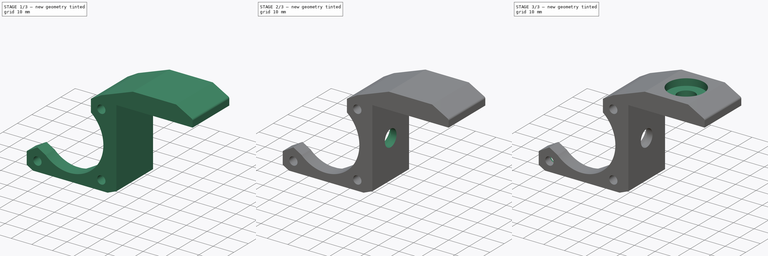
[diagram: build sequence overview — one tinted view per stage of 3, left to right]
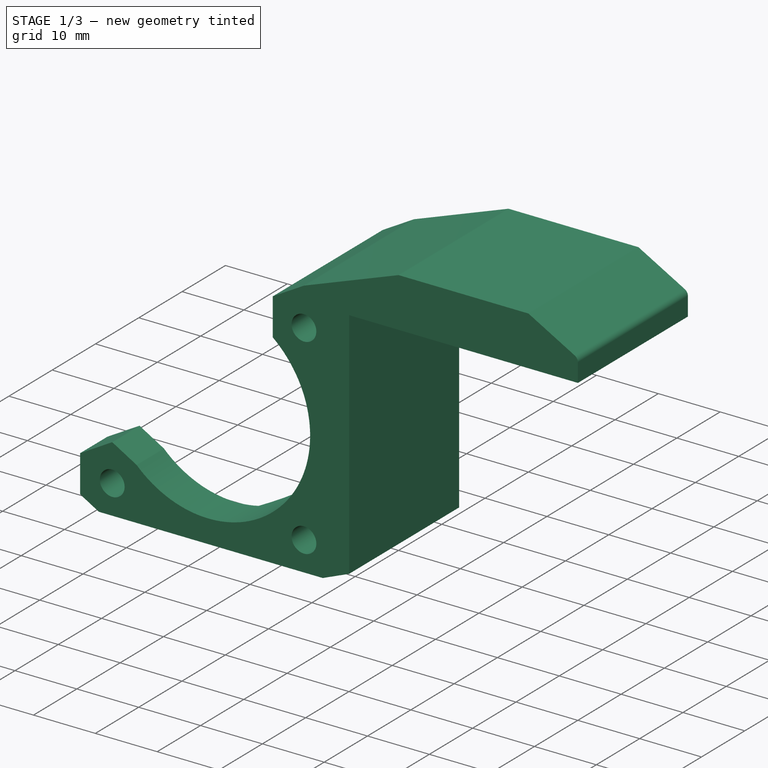
[diagram: stage 1 of 3 — iso view after this stage's code; geometry added in this stage tinted green]
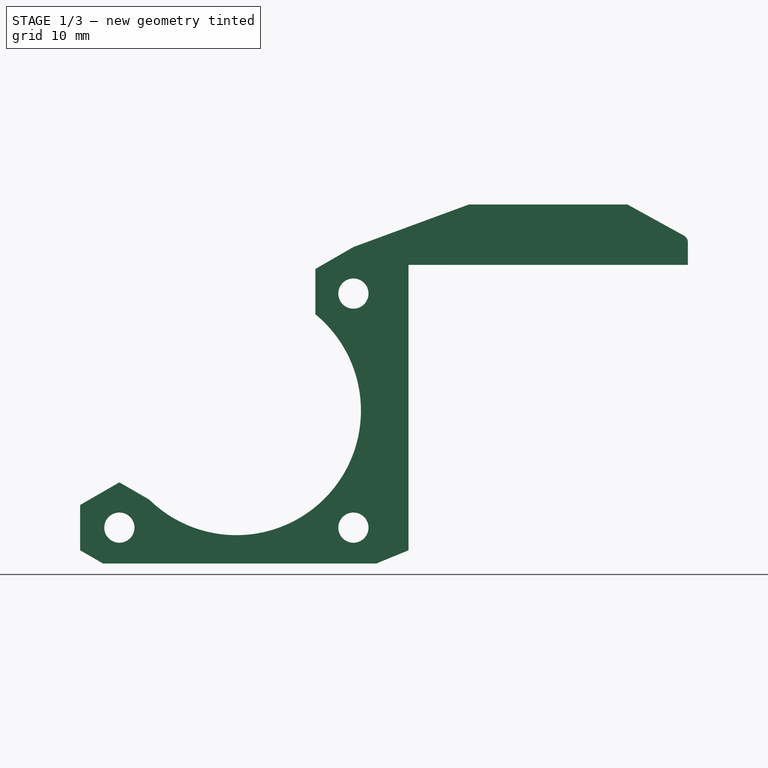
[diagram: stage 1 of 3 — front view after this stage's code; geometry added in this stage tinted green]
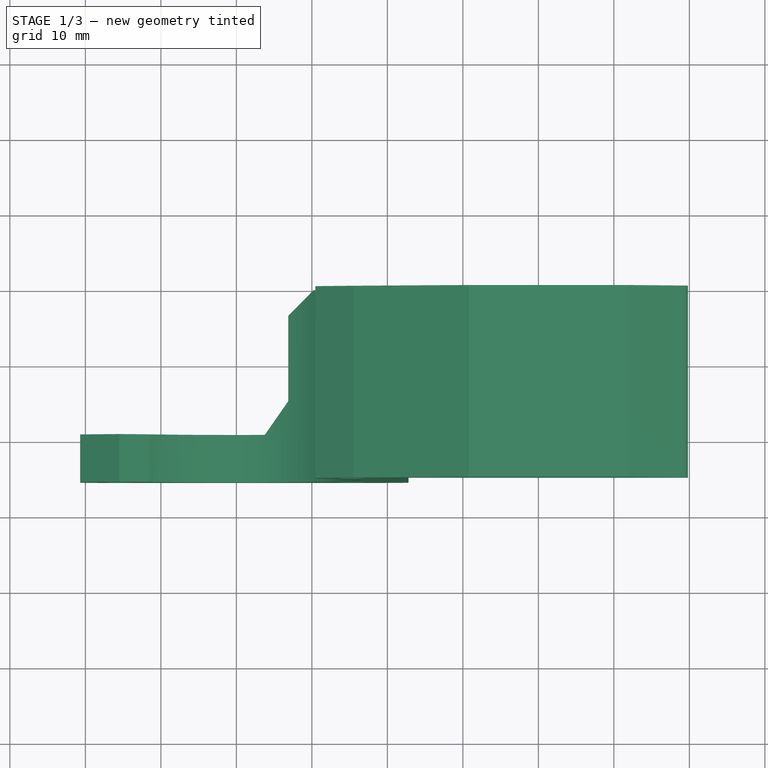
[diagram: stage 1 of 3 — top view after this stage's code; geometry added in this stage tinted green]
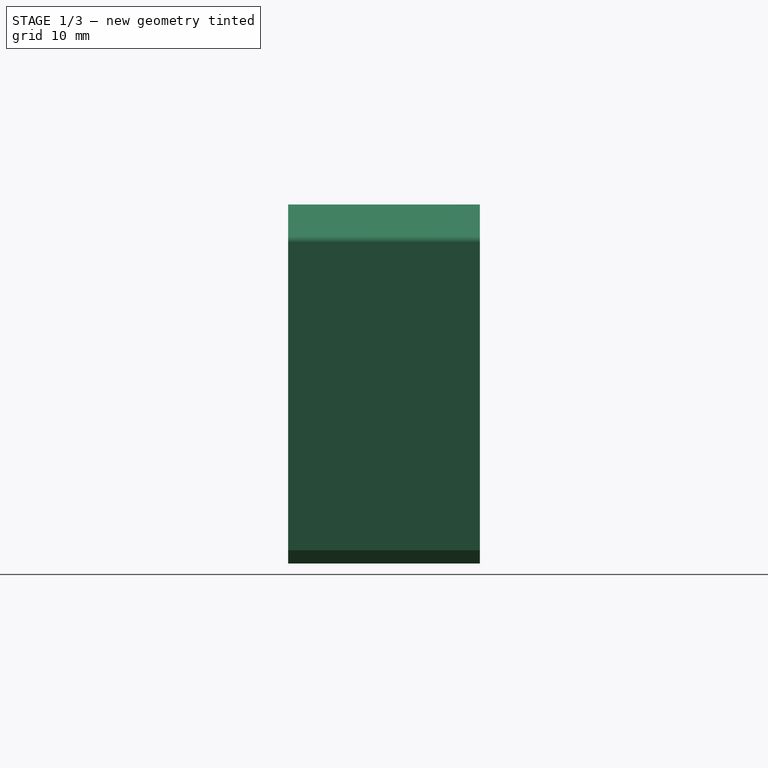
[diagram: stage 1 of 3 — right view after this stage's code; geometry added in this stage tinted green]
FCSTD DOCUMENT  (FreeCAD 0.18R)
Label: y-stepper-mount
License: All rights reserved
LicenseURL: http://en.wikipedia.org/wiki/All_rights_reserved
objects: Sketcher::SketchObject×8, PartDesign::Pocket×7, Part::Feature×2, PartDesign::Pad×1, PartDesign::Body×1
note: 27 computed .brp shape members not serialized (recipe doc carries the construction recipe); baked Part::Feature solids carry a one-line shape summary decoded from their .brp

FEATURE [Part::Feature] stepper_nema17
  Placement = pos=(0,-71.45,0) rot=(-1,0,0;1.5708rad)
  shape: bbox 41.86 x 69.5 x 40.63 mm, 80 faces (baked)
FEATURE [Sketcher::SketchObject] Sketch
  MapMode = 5
  Placement = pos=(0,0,0) rot=(1,0,0;1.5708rad)
  Support = -> [XZ_Plane]
  sketch-geometry (22):
    g0: Circle CenterX=-15.5 CenterY=-15.5 CenterZ=0 NormalX=0 NormalY=0 NormalZ=1 AngleXU=0 Radius=2
    g1: Circle CenterX=15.5 CenterY=-15.5 CenterZ=0 NormalX=0 NormalY=0 NormalZ=1 AngleXU=0 Radius=2
    g2: Circle CenterX=15.5 CenterY=15.5 CenterZ=0 NormalX=0 NormalY=0 NormalZ=1 AngleXU=0 Radius=2
    g3: ArcOfCircle CenterX=0 CenterY=0 CenterZ=0 NormalX=0 NormalY=0 NormalZ=1 AngleXU=0 Radius=16.5 StartAngle=3.9364 EndAngle=7.16717
    g4: LineSegment StartX=-15.5 StartY=-9.5 StartZ=0 EndX=-20.6962 EndY=-12.5 EndZ=0
    g5: LineSegment StartX=-20.6962 StartY=-12.5 StartZ=0 EndX=-20.6962 EndY=-18.5 EndZ=0
    g6: LineSegment StartX=-20.6962 StartY=-18.5 StartZ=0 EndX=-17.6651 EndY=-20.25 EndZ=0
    g7: LineSegment StartX=-15.5 StartY=-9.5 StartZ=0 EndX=-11.557 EndY=-11.7765 EndZ=0
    g8: LineSegment StartX=-13.3349 StartY=-20.25 StartZ=0 EndX=13.3349 EndY=-20.25 EndZ=0
    g9: LineSegment StartX=18.5417 StartY=-20.25 StartZ=0 EndX=22.8 EndY=-18.5 EndZ=0
    g10: LineSegment StartX=15.5 StartY=21.6675 StartZ=0 EndX=10.4622 EndY=18.759 EndZ=0
    g11: LineSegment StartX=10.4622 StartY=18.759 StartZ=0 EndX=10.4622 EndY=12.759 EndZ=0
    g12: LineSegment StartX=22.8 StartY=19.3 StartZ=0 EndX=22.8 EndY=-18.5 EndZ=0
    g13: LineSegment StartX=30.8 StartY=27.3 StartZ=0 EndX=51.8 EndY=27.3 EndZ=0
    g14: LineSegment StartX=59.8 StartY=22.3 StartZ=0 EndX=59.8 EndY=19.3 EndZ=0
    g15: LineSegment StartX=59.8 StartY=19.3 StartZ=0 EndX=22.8 EndY=19.3 EndZ=0
    g16: LineSegment StartX=15.5 StartY=21.6675 StartZ=0 EndX=30.8 EndY=27.3 EndZ=0
    g17: LineSegment StartX=51.8 StartY=27.3 StartZ=0 EndX=59.2827 EndY=23.1758 EndZ=0
    g18: ArcOfCircle CenterX=58.8 CenterY=22.3 CenterZ=0 NormalX=0 NormalY=0 NormalZ=1 AngleXU=0 Radius=1 StartAngle=1.4e-15 EndAngle=1.06706
    g19: LineSegment StartX=-13.3349 StartY=-20.25 StartZ=0 EndX=-17.6651 EndY=-20.25 EndZ=0
    g20: LineSegment StartX=13.3349 StartY=-20.25 StartZ=0 EndX=18.5417 EndY=-20.25 EndZ=0
    g21: LineSegment StartX=22.8 StartY=19.3 StartZ=0 EndX=22.8 EndY=24.3549 EndZ=0
  constraints (59):
    c: DistanceY(g0,g-1) = 15.5
    c: DistanceX(g0,g-1) = 15.5
    c: DistanceY(g0,g1) = 0
    c: DistanceX(g0,g1) = 31
    c: Equal(g1,g2)
    c: DistanceX(g2,g1) = 0
    c: DistanceY(g1,g2) = 31
    c: Coincident(g3,g-1)
    c: Diameter(g3) = 33
    c: Vertical(g5)
    c: Coincident(g5,g6)
    c: Coincident(g4,g5)
    c: Coincident(g4,g7)
    c: Angle(g5,g4) = 2.0944
    c: Angle(g6,g5) = 2.0944
    c: Angle(g4,g7) = 2.0944
    c: Diameter(g0) = 4
    c: DistanceY(g0,g4) = 6
    c: Distance(g4,g0) = 6
    c: Horizontal(g8)
    c: Coincident(g11,g10)
    c: Vertical(g11)
    c: Angle(g11,g10) = 2.0944
    c: Distance(g10,g2) = 6
    c: Coincident(g3,g7)
    c: Coincident(g3,g11)
    c: DistanceX(g4,g0) = 0
    c: Equal(g1,g0)
    c: Coincident(g12,g9)
    c: Vertical(g12)
    c: DistanceX(g2,g10) = 0
    c: DistanceY(g5,g9) = 0
    c: DistanceX(g3,g12) = 22.8
    c: Horizontal(g13)
    c: Vertical(g14)
    c: Coincident(g15,g14)
    c: DistanceX(g15,g15) = 37
    c: Coincident(g16,g10)
    c: Coincident(g16,g13)
    c: DistanceY(g3,g12) = 19.3
    c: DistanceX(g13,g14) = 8
    c: Coincident(g17,g13)
    c: Tangent(g17,g18) = 1.5708
    c: Tangent(g14,g18) = 1.5708
    c: DistanceX(g18,g14) = 1
    c: DistanceY(g14,g18) = 3
    c: DistanceX(g12,g13) = 8
    c: Coincident(g12,g15)
    c: Horizontal(g15)
    c: DistanceY(g11,g11) = 6
    c: Horizontal(g19)
    c: Coincident(g20,g8)
    c: Horizontal(g20)
    c: Coincident(g9,g20)
    c: Coincident(g6,g19)
    c: Coincident(g21,g12)
    c: PointOnObject(g21,g16)
    c: Vertical(g21)
    c: DistanceY(g12,g13) = 8
FEATURE [PartDesign::Pad] Pad
  Length = 25.4
  Length2 = 100
  Placement = pos=(0,0,0) rot=(1,0,0;1.5708rad)
  Profile = -> Sketch
  Type = 0
FEATURE [Sketcher::SketchObject] Sketch001
  MapMode = 5
  Placement = pos=(0,0,0) rot=(1,0,0;1.5708rad)
  Support = -> [XZ_Plane]
  sketch-geometry (2):
    g0: Circle CenterX=15.5 CenterY=-15.5 CenterZ=0 NormalX=0 NormalY=0 NormalZ=1 AngleXU=0 Radius=4
    g1: Circle CenterX=15.5 CenterY=15.5 CenterZ=0 NormalX=0 NormalY=0 NormalZ=1 AngleXU=0 Radius=4
  constraints (5):
    c: DistanceX(g1,g0) = 0
    c: DistanceY(g0,g1) = 31
    c: DistanceX(g-1,g1) = 15.5
    c: DistanceY(g-1,g1) = 15.5
    c: Diameter(g1) = 8
FEATURE [PartDesign::Pocket] Pocket
  BaseFeature = -> Pad
  Length = 17
  Length2 = 100
  Placement = pos=(0,0,0) rot=(1,0,0;1.5708rad)
  Profile = -> Sketch001
  Reversed = true
  Type = 0
FEATURE [Sketcher::SketchObject] Sketch002
  AttachmentOffset = pos=(0,0,23) rot=(0,0,1;0rad)
  MapMode = 5
  Placement = pos=(23,-5.1e-15,5.1e-15) rot=(0.57735,0.57735,0.57735;2.0944rad)
  Support = -> [YZ_Plane]
  sketch-geometry (1):
    g0: Circle CenterX=-12.7 CenterY=0 CenterZ=0 NormalX=0 NormalY=0 NormalZ=1 AngleXU=0 Radius=4.05
  constraints (3):
    c: DistanceY(g-1,g0) = 0
    c: DistanceX(g-1,g0) = -12.7
    c: Diameter(g0) = 8.1
FEATURE [Sketcher::SketchObject] Sketch003
  AttachmentOffset = pos=(0,0,40) rot=(0,0,1;0rad)
  MapMode = 5
  Placement = pos=(0,0,40) rot=(0,0,1;0rad)
  Support = -> [XY_Plane]
  sketch-geometry (6):
    g0: LineSegment StartX=6.87618 StartY=-3.32382 StartZ=0 EndX=6.87618 EndY=-14.6442 EndZ=0
    g1: LineSegment StartX=-20.8 StartY=-19.1 StartZ=0 EndX=3.75617 EndY=-19.1 EndZ=0
    g2: LineSegment StartX=6.87618 StartY=-14.6442 StartZ=0 EndX=3.75617 EndY=-19.1 EndZ=0
    g3: LineSegment StartX=6.87618 StartY=-3.32382 StartZ=0 EndX=10.2 EndY=0 EndZ=0
    g4: LineSegment StartX=10.2 StartY=0 StartZ=0 EndX=-20.8 EndY=0 EndZ=0
    g5: LineSegment StartX=-20.8 StartY=0 StartZ=0 EndX=-20.8 EndY=-19.1 EndZ=0
  constraints (16):
    c: Horizontal(g1)
    c: Coincident(g2,g1)
    c: Vertical(g0)
    c: Coincident(g2,g0)
    c: Coincident(g3,g0)
    c: PointOnObject(g3,g-1)
    c: Coincident(g4,g3)
    c: PointOnObject(g4,g-1)
    c: Coincident(g5,g4)
    c: Vertical(g5)
    c: DistanceX(g4,g4) = 31
    c: DistanceY(g1,g-1) = 19.1
    c: DistanceX(g4,g-1) = 20.8
    c: Angle(g2,g1) = 2.18166
    c: Coincident(g5,g1)
    c: Angle(g0,g3) = 2.35619
FEATURE [PartDesign::Pocket] Pocket001
  BaseFeature = -> Pocket
  Length = 200
  Length2 = 0
  Placement = pos=(0,0,0) rot=(1,0,0;1.5708rad)
  Profile = -> Sketch003
  Type = 0
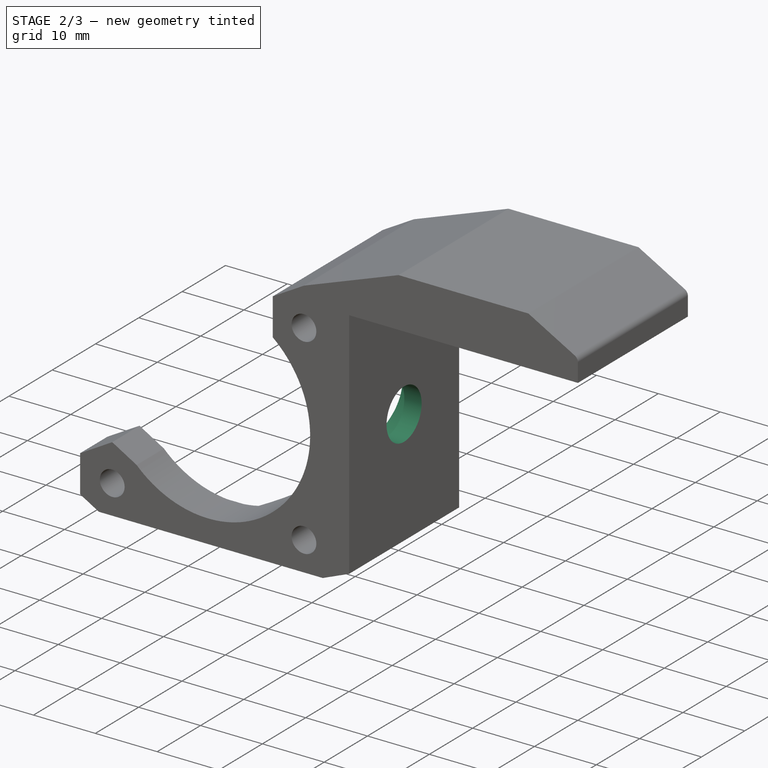
[diagram: stage 2 of 3 — iso view after this stage's code; geometry added in this stage tinted green]
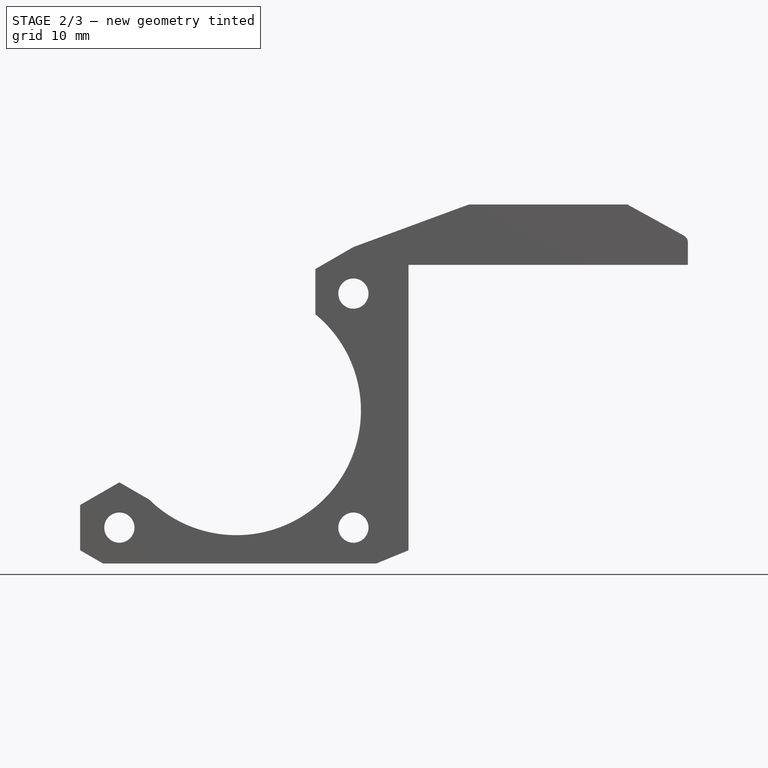
[diagram: stage 2 of 3 — front view after this stage's code; geometry added in this stage tinted green]
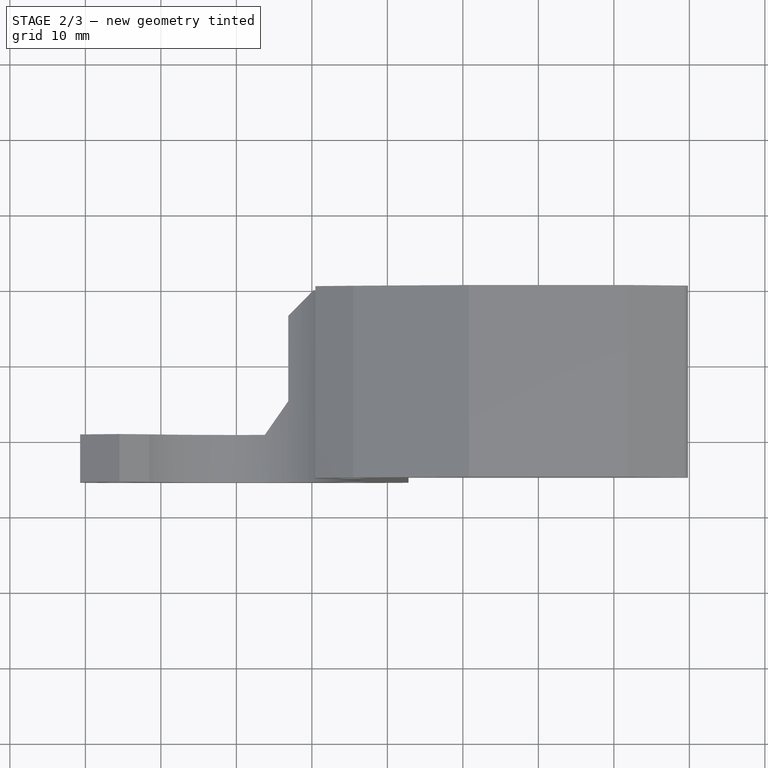
[diagram: stage 2 of 3 — top view after this stage's code; geometry added in this stage tinted green]
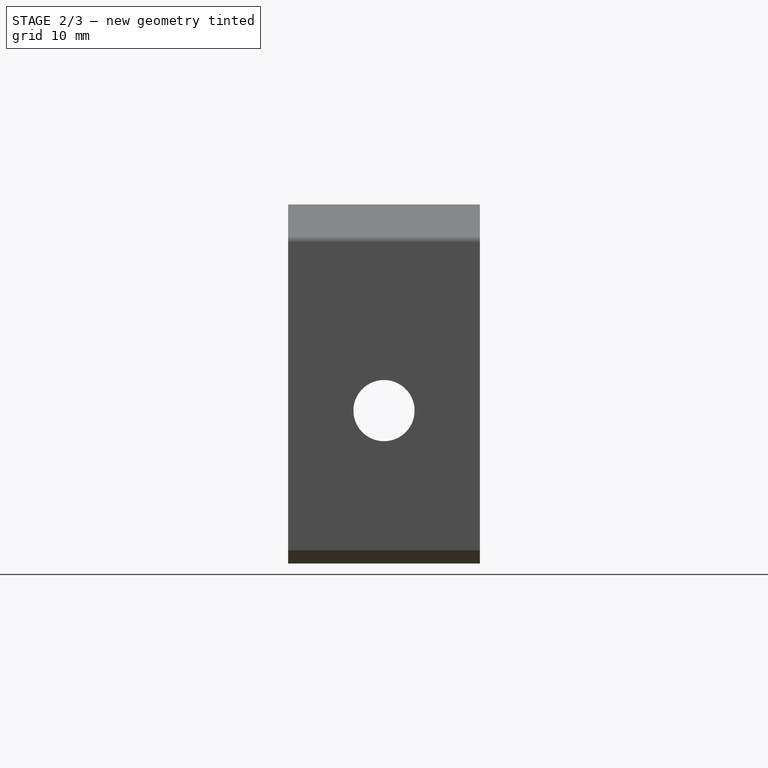
[diagram: stage 2 of 3 — right view after this stage's code; geometry added in this stage tinted green]
FEATURE [PartDesign::Pocket] Pocket002
  BaseFeature = -> Pocket001
  Length = 5
  Length2 = 100
  Placement = pos=(0,0,0) rot=(1,0,0;1.5708rad)
  Profile = -> Sketch002
  Type = 1
FEATURE [Sketcher::SketchObject] Sketch004
  AttachmentOffset = pos=(0,0,20) rot=(0,0,1;0rad)
  MapMode = 5
  Placement = pos=(20,-4.4e-15,4.4e-15) rot=(0.57735,0.57735,0.57735;2.0944rad)
  Support = -> [YZ_Plane]
  sketch-geometry (1):
    g0: Circle CenterX=-12.7 CenterY=0 CenterZ=0 NormalX=0 NormalY=0 NormalZ=1 AngleXU=0 Radius=8.625
  constraints (3):
    c: Diameter(g0) = 17.25
    c: DistanceY(g-1,g0) = 0
    c: DistanceX(g0,g-1) = 12.7
FEATURE [PartDesign::Pocket] Pocket003
  BaseFeature = -> Pocket002
  Length = 6
  Length2 = 100
  Placement = pos=(0,0,0) rot=(1,0,0;1.5708rad)
  Profile = -> Sketch004
  Type = 0
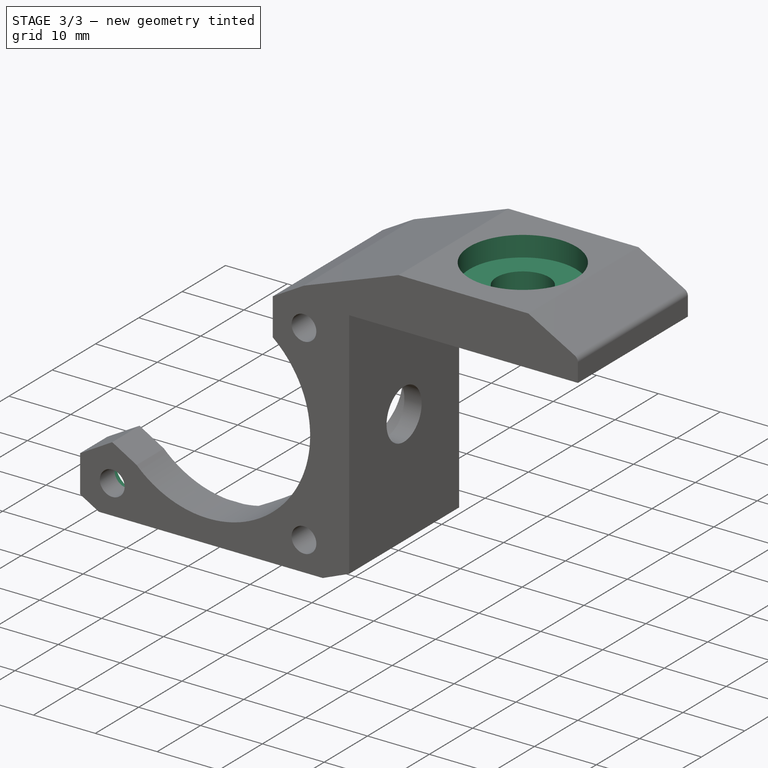
[diagram: stage 3 of 3 — iso view after this stage's code; geometry added in this stage tinted green]
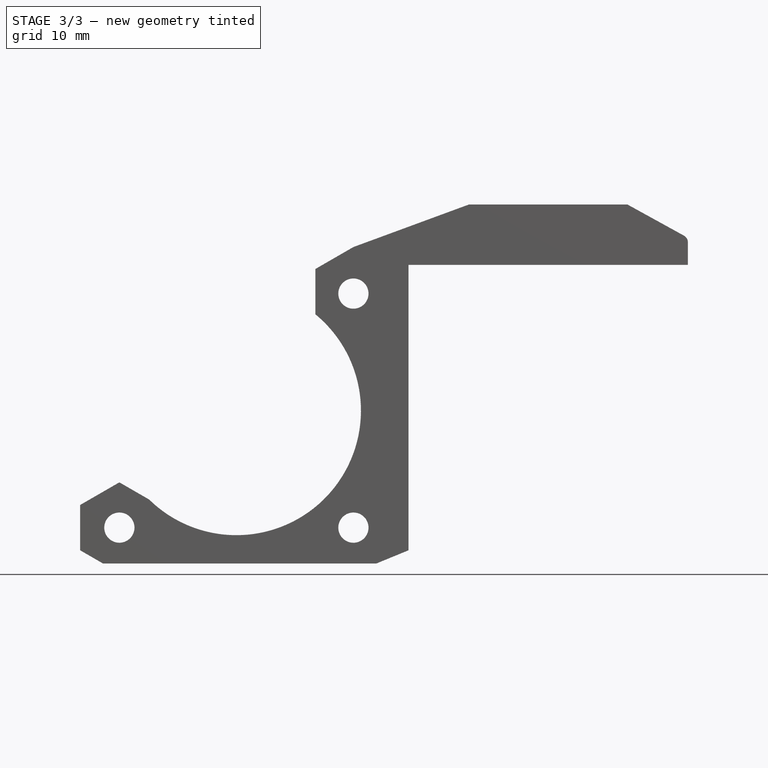
[diagram: stage 3 of 3 — front view after this stage's code; geometry added in this stage tinted green]
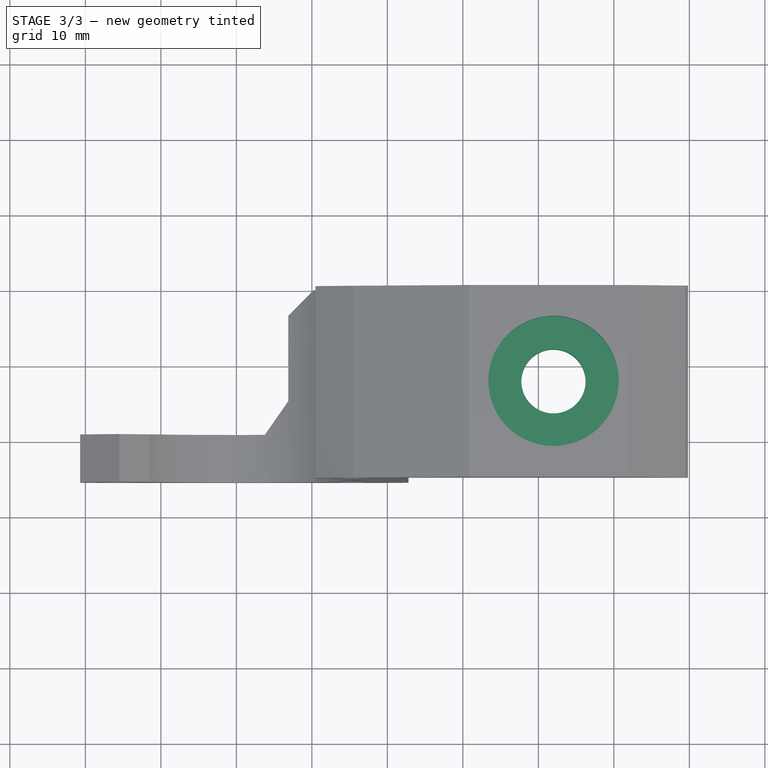
[diagram: stage 3 of 3 — top view after this stage's code; geometry added in this stage tinted green]
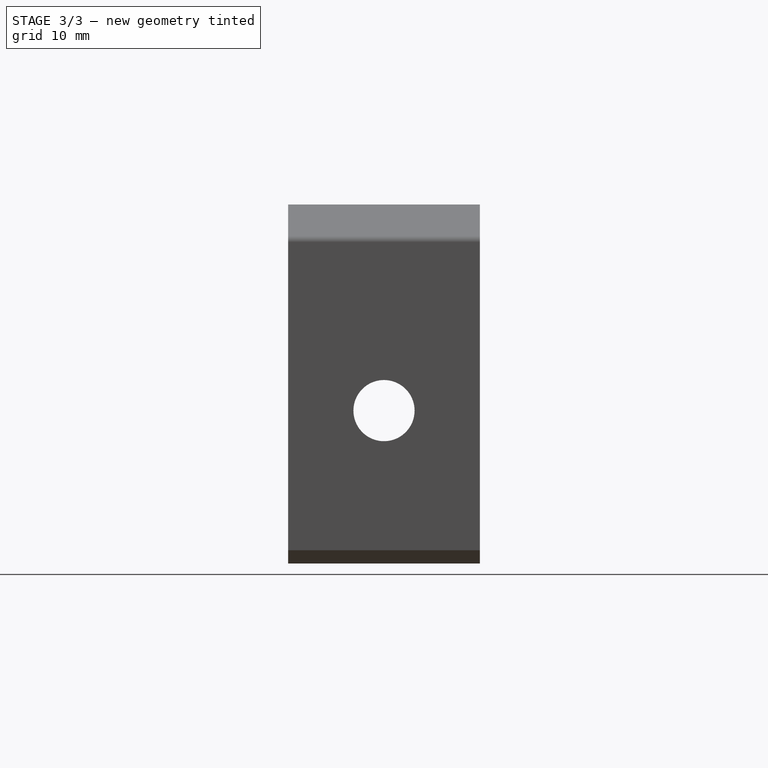
[diagram: stage 3 of 3 — right view after this stage's code; geometry added in this stage tinted green]
FEATURE [Part::Feature] _515_extrusion_200_25mm_7_7_8in
  Placement = pos=(-104,0,-57) rot=(1,0,0;1.5708rad)
  shape: bbox 38.1 x 200 x 38.1 mm, 113 faces (baked)
FEATURE [Sketcher::SketchObject] Sketch005
  MapMode = 5
  Support = -> [XY_Plane]
  sketch-geometry (1):
    g0: Circle CenterX=42 CenterY=-12.7 CenterZ=0 NormalX=0 NormalY=0 NormalZ=1 AngleXU=0 Radius=4.25
  constraints (3):
    c: Diameter(g0) = 8.5
    c: DistanceY(g0,g-1) = 12.7
    c: DistanceX(g-1,g0) = 42
FEATURE [PartDesign::Pocket] Pocket004
  BaseFeature = -> Pocket003
  Length = 15
  Length2 = 100
  Placement = pos=(0,0,0) rot=(1,0,0;1.5708rad)
  Profile = -> Sketch005
  Reversed = true
  Type = 1
FEATURE [Sketcher::SketchObject] Sketch006
  AttachmentOffset = pos=(0,0,24) rot=(0,0,1;0rad)
  MapMode = 5
  Placement = pos=(0,0,24) rot=(0,0,1;0rad)
  Support = -> [XY_Plane]
  sketch-geometry (1):
    g0: Circle CenterX=42 CenterY=-12.7 CenterZ=0 NormalX=0 NormalY=0 NormalZ=1 AngleXU=0 Radius=8.625
  constraints (3):
    c: Diameter(g0) = 17.25
    c: DistanceX(g-1,g0) = 42
    c: DistanceY(g0,g-1) = 12.7
FEATURE [PartDesign::Pocket] Pocket005
  BaseFeature = -> Pocket004
  Length = 8
  Length2 = 100
  Offset = 5
  Placement = pos=(0,0,0) rot=(1,0,0;1.5708rad)
  Profile = -> Sketch006
  Reversed = true
  Type = 0
FEATURE [Sketcher::SketchObject] Sketch007
  AttachmentOffset = pos=(0,0,22) rot=(0,0,1;0rad)
  MapMode = 5
  Placement = pos=(0,-22,-4.9e-15) rot=(1,0,0;1.5708rad)
  Support = -> [XZ_Plane]
  sketch-geometry (1):
    g0: Circle CenterX=-15.5 CenterY=-15.5 CenterZ=0 NormalX=0 NormalY=0 NormalZ=1 AngleXU=0 Radius=4
  constraints (3):
    c: Diameter(g0) = 8
    c: DistanceY(g0,g-1) = 15.5
    c: DistanceX(g0,g-1) = 15.5
FEATURE [PartDesign::Pocket] Pocket006
  BaseFeature = -> Pocket005
  Length = 3
  Length2 = 100
  Placement = pos=(0,0,0) rot=(1,0,0;1.5708rad)
  Profile = -> Sketch007
  Type = 0
FEATURE [PartDesign::Body] Body  label="y-stepper_mount"
  Group = -> [Sketch,Pad,Sketch001,Pocket,Sketch002,Sketch003,Pocket001,Pocket002,Sketch004,Pocket003,Sketch005,Pocket004,Sketch006,Pocket005,Sketch007,Pocket006]
  Origin = -> Origin
  Tip = -> Pocket006
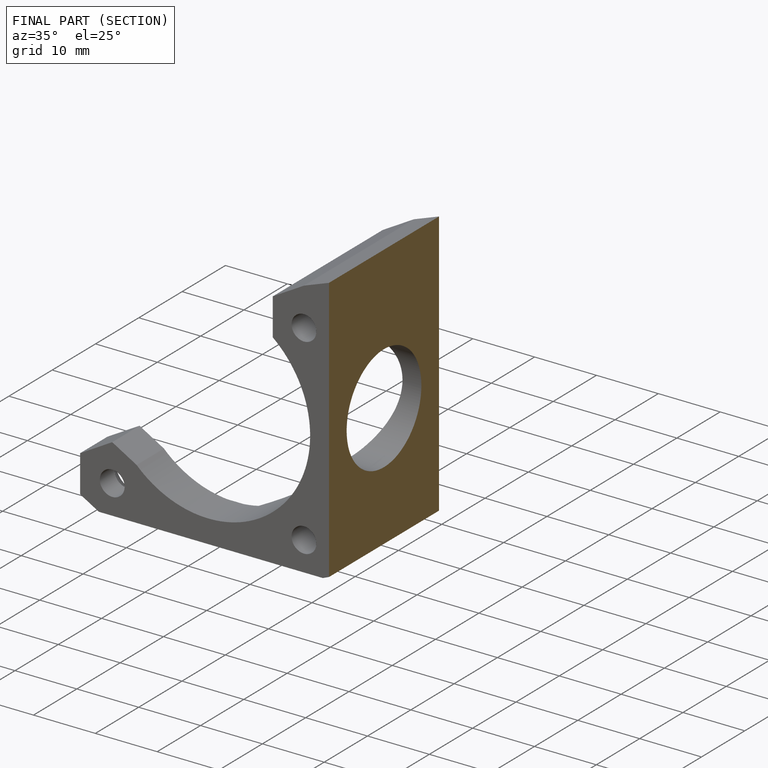
[diagram: finished part — half-section view (interior)]
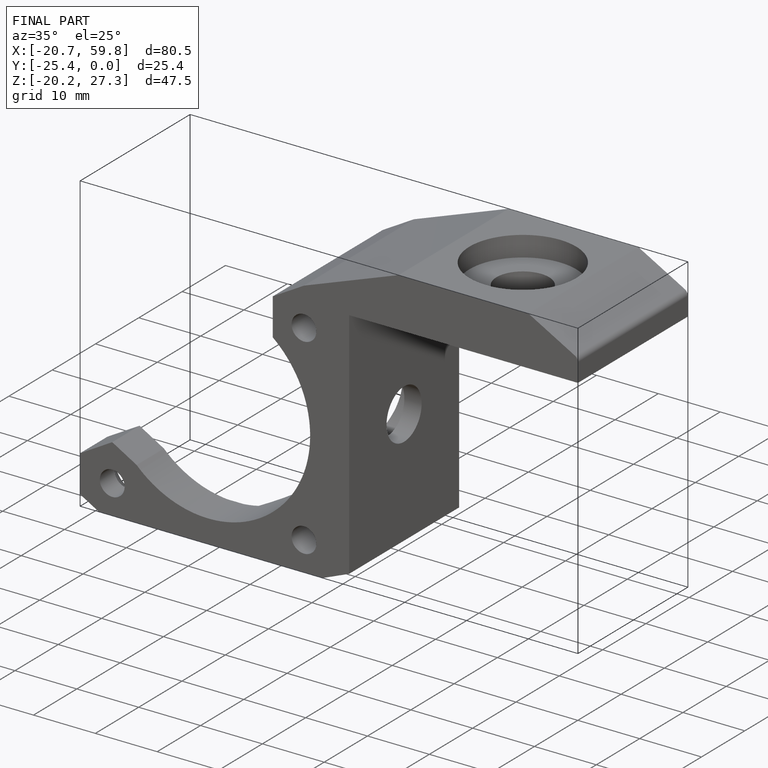
[diagram: finished part — iso view with bounding-box wireframe]
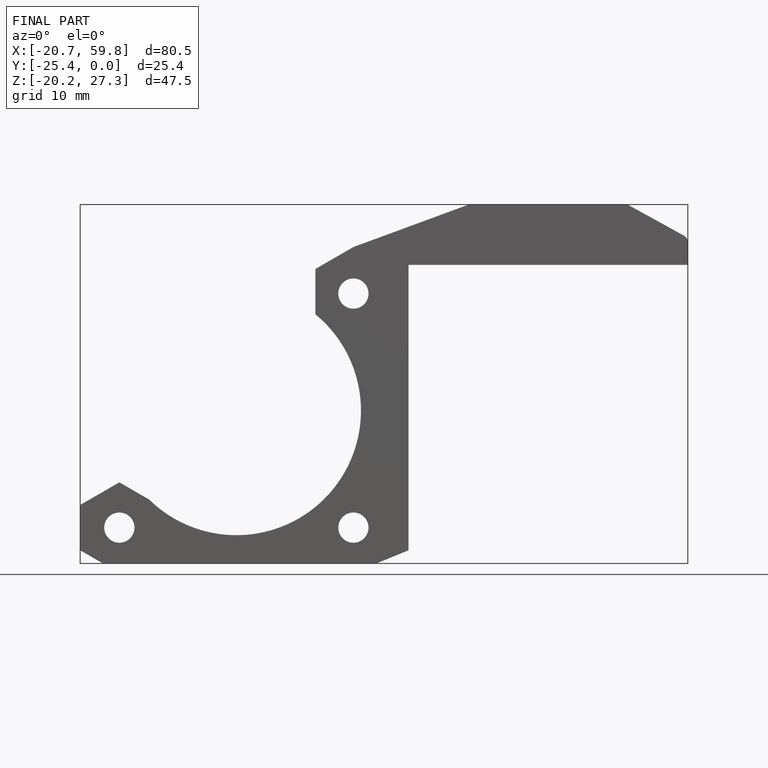
[diagram: finished part — front view with bounding-box wireframe]
